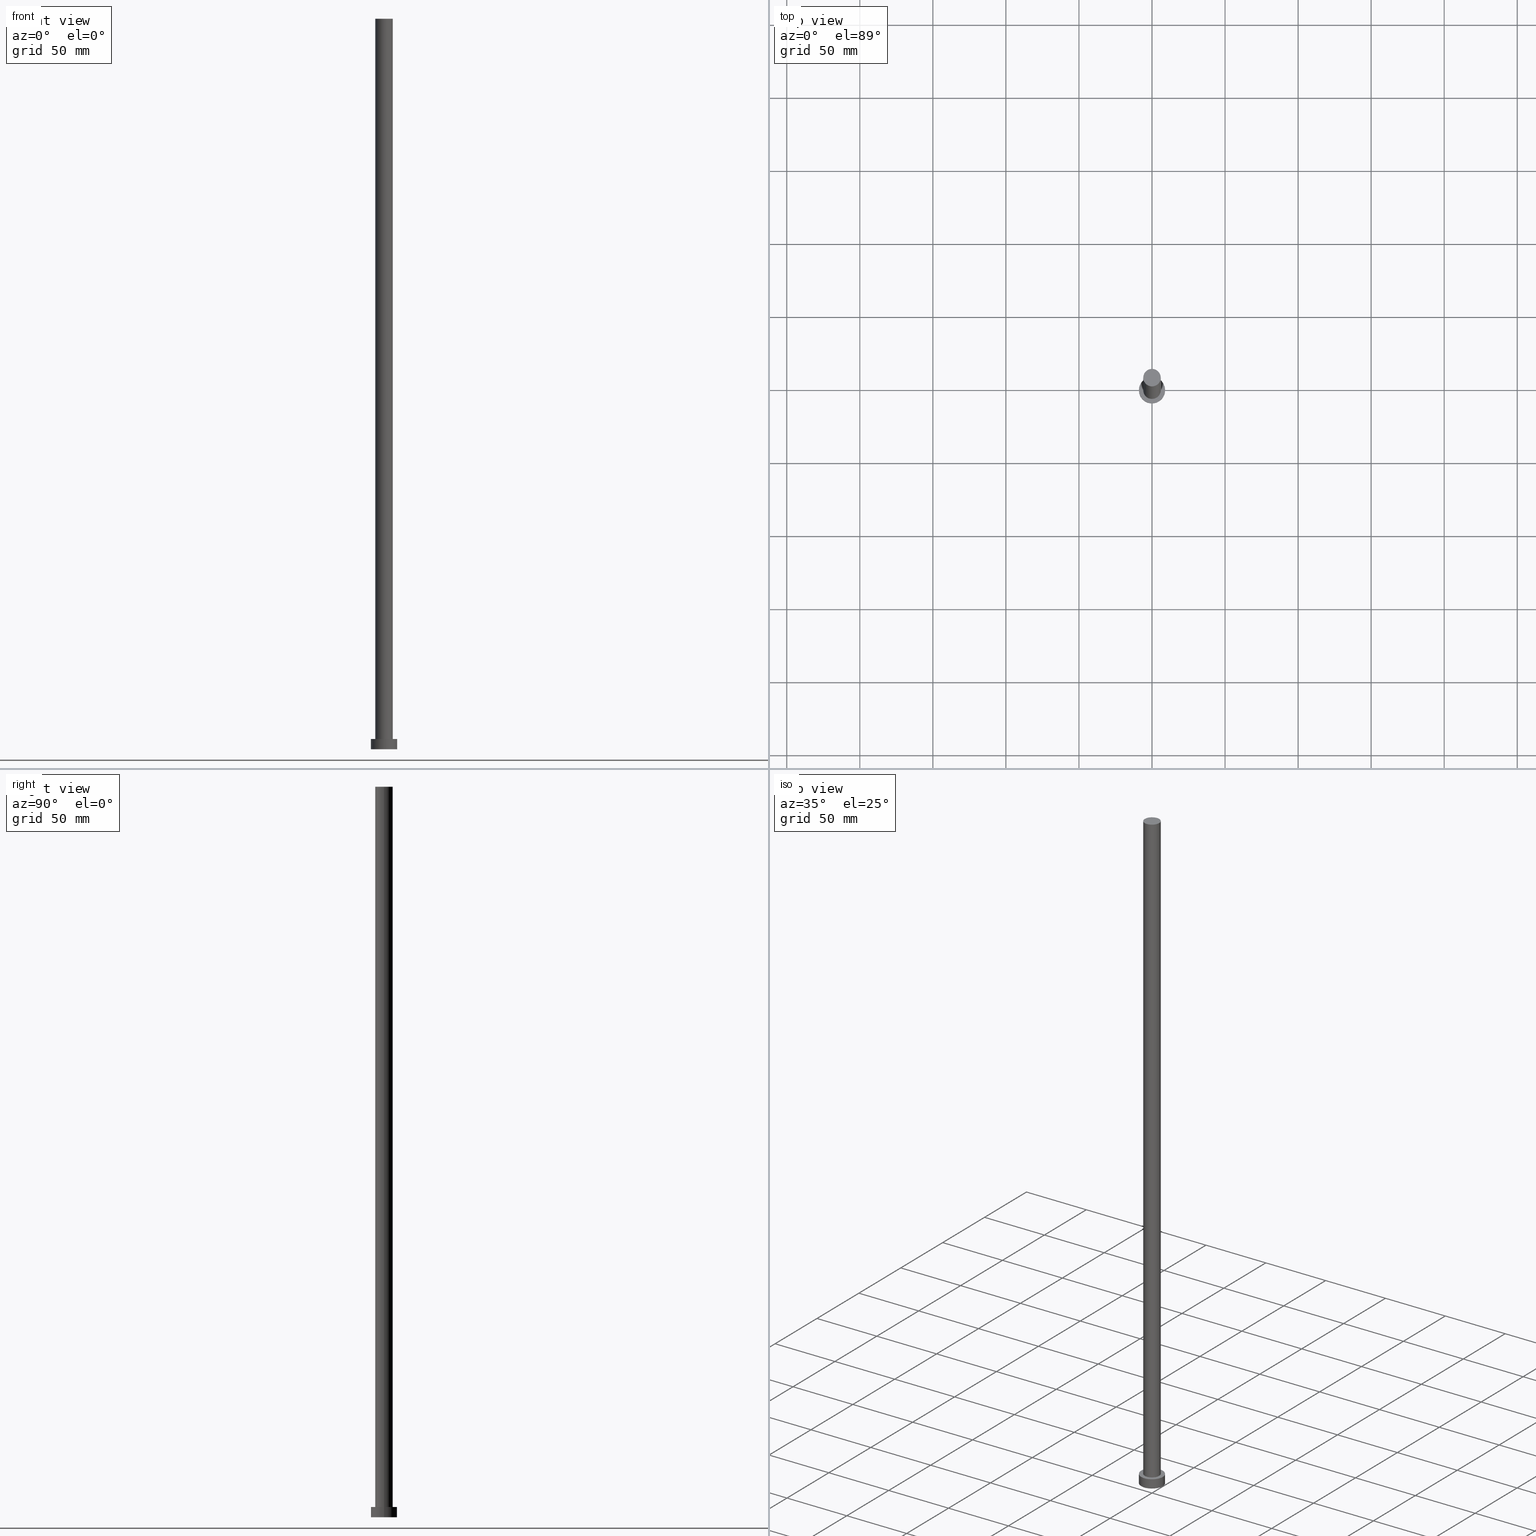
[diagram: canonical four-view strip — front | top / right | iso, engineering-drawing reading convention]
A machine part, canonical four-view strip (front | top / right | iso — engineering-drawing reading convention). The complete STEP part file that produces these views, byte-faithful:
ISO-10303-21;
HEADER;
FILE_DESCRIPTION (( 'STEP AP203' ),
    '1' );
FILE_NAME ('da40.STEP',
    '2023-02-13T08:56:03',
    ( '' ),
    ( '' ),
    'SwSTEP 2.0',
    'SolidWorks 2019',
    '' );
FILE_SCHEMA (( 'CONFIG_CONTROL_DESIGN' ));
ENDSEC;

DATA;
#1 = AXIS2_PLACEMENT_3D ( 'NONE', #202, #233, #64 ) ;
#2 = DIRECTION ( 'NONE',  ( 0.000000000000000000, 0.000000000000000000, 1.000000000000000000 ) ) ;
#3 = CARTESIAN_POINT ( 'NONE',  ( 0.000000000000000000, 0.000000000000000000, 500.0000000000000000 ) ) ;
#4 = DIRECTION ( 'NONE',  ( 1.000000000000000000, 0.000000000000000000, 0.000000000000000000 ) ) ;
#5 = DIRECTION ( 'NONE',  ( -0.000000000000000000, -0.000000000000000000, -1.000000000000000000 ) ) ;
#6 = PLANE ( 'NONE',  #161 ) ;
#7 = AXIS2_PLACEMENT_3D ( 'NONE', #80, #40, #106 ) ;
#8 = DESIGN_CONTEXT ( 'detailed design', #123, 'design' ) ;
#9 = ORIENTED_EDGE ( 'NONE', *, *, #138, .T. ) ;
#10 = DIRECTION ( 'NONE',  ( 0.000000000000000000, 0.000000000000000000, 1.000000000000000000 ) ) ;
#11 = ORIENTED_EDGE ( 'NONE', *, *, #163, .T. ) ;
#12 = CIRCLE ( 'NONE', #157, 6.000000000000000888 ) ;
#13 = EDGE_LOOP ( 'NONE', ( #249, #207, #118, #179 ) ) ;
#14 = ORIENTED_EDGE ( 'NONE', *, *, #19, .T. ) ;
#15 = DATE_AND_TIME ( #50, #85 ) ;
#16 = COORDINATED_UNIVERSAL_TIME_OFFSET ( 1, 0, .AHEAD. ) ;
#17 = COORDINATED_UNIVERSAL_TIME_OFFSET ( 1, 0, .AHEAD. ) ;
#18 = AXIS2_PLACEMENT_3D ( 'NONE', #3, #183, #131 ) ;
#19 = EDGE_CURVE ( 'NONE', #227, #137, #252, .T. ) ;
#20 = FACE_OUTER_BOUND ( 'NONE', #71, .T. ) ;
#21 = CARTESIAN_POINT ( 'NONE',  ( -9.000000000000000000, 0.000000000000000000, 7.000000000000000000 ) ) ;
#22 = DIRECTION ( 'NONE',  ( 0.000000000000000000, 0.000000000000000000, 1.000000000000000000 ) ) ;
#23 = FACE_OUTER_BOUND ( 'NONE', #27, .T. ) ;
#24 = EDGE_LOOP ( 'NONE', ( #9, #171 ) ) ;
#25 = LOCAL_TIME ( 9, 56, 3.000000000000000000, #17 ) ;
#26 = APPROVAL_STATUS ( 'not_yet_approved' ) ;
#27 = EDGE_LOOP ( 'NONE', ( #151, #154, #49, #97 ) ) ;
#28 = CC_DESIGN_PERSON_AND_ORGANIZATION_ASSIGNMENT ( #244, #69, ( #205 ) ) ;
#29 = ORIENTED_EDGE ( 'NONE', *, *, #72, .F. ) ;
#30 = APPROVAL_PERSON_ORGANIZATION ( #208, #37, #188 ) ;
#31 = EDGE_CURVE ( 'NONE', #172, #93, #174, .T. ) ;
#32 = PERSON_AND_ORGANIZATION ( #35, #101 ) ;
#33 = FACE_OUTER_BOUND ( 'NONE', #243, .T. ) ;
#34 = PERSON_AND_ORGANIZATION ( #35, #101 ) ;
#35 = PERSON ( 'NEUR�EN�', 'NEUR�EN�', 'NEUR�EN�', ('NEUR�EN�'), ('NEUR�EN�'), ('NEUR�EN�') ) ;
#36 = DIRECTION ( 'NONE',  ( 0.000000000000000000, 0.000000000000000000, 1.000000000000000000 ) ) ;
#37 = APPROVAL ( #26, 'NEUR�EN�' ) ;
#38 = CARTESIAN_POINT ( 'NONE',  ( 0.000000000000000000, 0.000000000000000000, 500.0000000000000000 ) ) ;
#39 = AXIS2_PLACEMENT_3D ( 'NONE', #53, #36, #193 ) ;
#40 = DIRECTION ( 'NONE',  ( 0.000000000000000000, 0.000000000000000000, 1.000000000000000000 ) ) ;
#41 = DIRECTION ( 'NONE',  ( 0.000000000000000000, 0.000000000000000000, 1.000000000000000000 ) ) ;
#42 = DIRECTION ( 'NONE',  ( 1.000000000000000000, 0.000000000000000000, 0.000000000000000000 ) ) ;
#43 = VECTOR ( 'NONE', #143, 1000.000000000000000 ) ;
#44 = DIRECTION ( 'NONE',  ( 1.000000000000000000, 0.000000000000000000, -0.000000000000000000 ) ) ;
#45 = CC_DESIGN_DATE_AND_TIME_ASSIGNMENT ( #117, #173, ( #122 ) ) ;
#46 = ORIENTED_EDGE ( 'NONE', *, *, #115, .F. ) ;
#47 = ORIENTED_EDGE ( 'NONE', *, *, #196, .F. ) ;
#48 = CIRCLE ( 'NONE', #144, 6.000000000000000888 ) ;
#49 = ORIENTED_EDGE ( 'NONE', *, *, #31, .T. ) ;
#50 = CALENDAR_DATE ( 2023, 13, 2 ) ;
#51 = CIRCLE ( 'NONE', #7, 9.000000000000000000 ) ;
#52 = APPROVAL_DATE_TIME ( #155, #81 ) ;
#53 = CARTESIAN_POINT ( 'NONE',  ( 0.000000000000000000, 0.000000000000000000, 0.000000000000000000 ) ) ;
#54 = CC_DESIGN_PERSON_AND_ORGANIZATION_ASSIGNMENT ( #34, #229, ( #241 ) ) ;
#55 = PERSON_AND_ORGANIZATION_ROLE ( 'design_supplier' ) ;
#56 = DIRECTION ( 'NONE',  ( 0.000000000000000000, 0.000000000000000000, 1.000000000000000000 ) ) ;
#57 = CARTESIAN_POINT ( 'NONE',  ( 0.000000000000000000, 0.000000000000000000, 7.000000000000000000 ) ) ;
#58 = CARTESIAN_POINT ( 'NONE',  ( 6.000000000000000888, 7.347880794884120722E-16, 500.0000000000000000 ) ) ;
#59 = VECTOR ( 'NONE', #185, 1000.000000000000000 ) ;
#60 = EDGE_CURVE ( 'NONE', #210, #172, #126, .T. ) ;
#61 = CARTESIAN_POINT ( 'NONE',  ( 0.000000000000000000, 0.000000000000000000, 0.000000000000000000 ) ) ;
#62 = CARTESIAN_POINT ( 'NONE',  ( 9.000000000000000000, 1.102182119232617714E-15, 0.000000000000000000 ) ) ;
#63 = AXIS2_PLACEMENT_3D ( 'NONE', #159, #128, #127 ) ;
#64 = DIRECTION ( 'NONE',  ( 1.000000000000000000, 0.000000000000000000, -0.000000000000000000 ) ) ;
#65 = VECTOR ( 'NONE', #253, 1000.000000000000000 ) ;
#66 = ADVANCED_FACE ( 'NONE', ( #33 ), #119, .T. ) ;
#67 = LOCAL_TIME ( 9, 56, 3.000000000000000000, #95 ) ;
#68 = DIRECTION ( 'NONE',  ( 0.000000000000000000, 0.000000000000000000, 1.000000000000000000 ) ) ;
#69 = PERSON_AND_ORGANIZATION_ROLE ( 'design_owner' ) ;
#70 = CARTESIAN_POINT ( 'NONE',  ( 0.000000000000000000, 0.000000000000000000, 7.000000000000000000 ) ) ;
#71 = EDGE_LOOP ( 'NONE', ( #113, #247 ) ) ;
#72 = EDGE_CURVE ( 'NONE', #114, #211, #51, .T. ) ;
#73 = CALENDAR_DATE ( 2023, 13, 2 ) ;
#74 = PRODUCT_DEFINITION_SHAPE ( 'NONE', 'NONE',  #122 ) ;
#75 = SECURITY_CLASSIFICATION_LEVEL ( 'unclassified' ) ;
#76 = CC_DESIGN_SECURITY_CLASSIFICATION ( #108, ( #241 ) ) ;
#77 = PERSON_AND_ORGANIZATION_ROLE ( 'classification_officer' ) ;
#78 = ORIENTED_EDGE ( 'NONE', *, *, #245, .F. ) ;
#79 = APPROVAL_STATUS ( 'not_yet_approved' ) ;
#80 = CARTESIAN_POINT ( 'NONE',  ( 0.000000000000000000, 0.000000000000000000, 7.000000000000000000 ) ) ;
#81 = APPROVAL ( #79, 'NEUR�EN�' ) ;
#82 = COORDINATED_UNIVERSAL_TIME_OFFSET ( 1, 0, .AHEAD. ) ;
#83 = APPLICATION_CONTEXT ( 'configuration controlled 3d designs of mechanical parts and assemblies' ) ;
#84 = AXIS2_PLACEMENT_3D ( 'NONE', #220, #160, #218 ) ;
#85 = LOCAL_TIME ( 9, 56, 3.000000000000000000, #120 ) ;
#86 = CYLINDRICAL_SURFACE ( 'NONE', #63, 9.000000000000000000 ) ;
#87 = PLANE ( 'NONE',  #166 ) ;
#88 = CARTESIAN_POINT ( 'NONE',  ( -6.000000000000000888, 0.000000000000000000, 500.0000000000000000 ) ) ;
#89 = CARTESIAN_POINT ( 'NONE',  ( 6.000000000000000888, 7.347880794884120722E-16, 7.000000000000000000 ) ) ;
#90 = ADVANCED_FACE ( 'NONE', ( #221 ), #86, .T. ) ;
#91 = AXIS2_PLACEMENT_3D ( 'NONE', #38, #162, #236 ) ;
#92 = AXIS2_PLACEMENT_3D ( 'NONE', #230, #56, #141 ) ;
#93 = VERTEX_POINT ( 'NONE', #219 ) ;
#94 = ORIENTED_EDGE ( 'NONE', *, *, #196, .T. ) ;
#95 = COORDINATED_UNIVERSAL_TIME_OFFSET ( 1, 0, .AHEAD. ) ;
#96 = EDGE_CURVE ( 'NONE', #210, #209, #184, .T. ) ;
#97 = ORIENTED_EDGE ( 'NONE', *, *, #237, .T. ) ;
#98 = MANIFOLD_SOLID_BREP ( 'P�idat vysunut�m3', #199 ) ;
#99 = CC_DESIGN_DATE_AND_TIME_ASSIGNMENT ( #104, #177, ( #108 ) ) ;
#100 = ADVANCED_BREP_SHAPE_REPRESENTATION ( 'da40', ( #98, #167 ), #191 ) ;
#101 = ORGANIZATION ( 'NEUR�EN�', 'NEUR�EN�', '' ) ;
#102 = APPROVAL_STATUS ( 'not_yet_approved' ) ;
#103 = CARTESIAN_POINT ( 'NONE',  ( 0.000000000000000000, 0.000000000000000000, 7.000000000000000000 ) ) ;
#104 = DATE_AND_TIME ( #156, #25 ) ;
#105 = CARTESIAN_POINT ( 'NONE',  ( 0.000000000000000000, 0.000000000000000000, 0.000000000000000000 ) ) ;
#106 = DIRECTION ( 'NONE',  ( 1.000000000000000000, 0.000000000000000000, 0.000000000000000000 ) ) ;
#107 = FACE_OUTER_BOUND ( 'NONE', #13, .T. ) ;
#108 = SECURITY_CLASSIFICATION ( '', '', #75 ) ;
#109 = FACE_OUTER_BOUND ( 'NONE', #169, .T. ) ;
#110 = ADVANCED_FACE ( 'NONE', ( #107 ), #203, .T. ) ;
#111 = LINE ( 'NONE', #21, #190 ) ;
#112 = ORIENTED_EDGE ( 'NONE', *, *, #115, .T. ) ;
#113 = ORIENTED_EDGE ( 'NONE', *, *, #187, .F. ) ;
#114 = VERTEX_POINT ( 'NONE', #200 ) ;
#115 = EDGE_CURVE ( 'NONE', #211, #137, #111, .T. ) ;
#116 = PERSON_AND_ORGANIZATION ( #35, #101 ) ;
#117 = DATE_AND_TIME ( #215, #232 ) ;
#118 = ORIENTED_EDGE ( 'NONE', *, *, #245, .T. ) ;
#119 = CYLINDRICAL_SURFACE ( 'NONE', #212, 9.000000000000000000 ) ;
#120 = COORDINATED_UNIVERSAL_TIME_OFFSET ( 1, 0, .AHEAD. ) ;
#121 = DIRECTION ( 'NONE',  ( -1.000000000000000000, 0.000000000000000000, 0.000000000000000000 ) ) ;
#122 = PRODUCT_DEFINITION ( 'NEZN�M�', '', #241, #8 ) ;
#123 = APPLICATION_CONTEXT ( 'configuration controlled 3d designs of mechanical parts and assemblies' ) ;
#124 = LINE ( 'NONE', #129, #59 ) ;
#125 = AXIS2_PLACEMENT_3D ( 'NONE', #57, #22, #4 ) ;
#126 = CIRCLE ( 'NONE', #92, 6.000000000000000888 ) ;
#127 = DIRECTION ( 'NONE',  ( -1.000000000000000000, 0.000000000000000000, 0.000000000000000000 ) ) ;
#128 = DIRECTION ( 'NONE',  ( -0.000000000000000000, -0.000000000000000000, -1.000000000000000000 ) ) ;
#129 = CARTESIAN_POINT ( 'NONE',  ( 9.000000000000000000, 1.102182119232617714E-15, 7.000000000000000000 ) ) ;
#130 = ADVANCED_FACE ( 'NONE', ( #239, #109 ), #165, .T. ) ;
#131 = DIRECTION ( 'NONE',  ( 1.000000000000000000, 0.000000000000000000, 0.000000000000000000 ) ) ;
#132 =( NAMED_UNIT ( * ) SI_UNIT ( $, .STERADIAN. ) SOLID_ANGLE_UNIT ( ) );
#133 = DIRECTION ( 'NONE',  ( 1.000000000000000000, 0.000000000000000000, 0.000000000000000000 ) ) ;
#134 = CC_DESIGN_APPROVAL ( #81, ( #108 ) ) ;
#135 = EDGE_LOOP ( 'NONE', ( #231, #78 ) ) ;
#136 =( LENGTH_UNIT ( ) NAMED_UNIT ( * ) SI_UNIT ( .MILLI., .METRE. ) );
#137 = VERTEX_POINT ( 'NONE', #217 ) ;
#138 = EDGE_CURVE ( 'NONE', #172, #210, #149, .T. ) ;
#139 = SHAPE_DEFINITION_REPRESENTATION ( #74, #100 ) ;
#140 = CIRCLE ( 'NONE', #194, 9.000000000000000000 ) ;
#141 = DIRECTION ( 'NONE',  ( 1.000000000000000000, 0.000000000000000000, 0.000000000000000000 ) ) ;
#142 = PERSON_AND_ORGANIZATION_ROLE ( 'creator' ) ;
#143 = DIRECTION ( 'NONE',  ( -0.000000000000000000, -0.000000000000000000, -1.000000000000000000 ) ) ;
#144 = AXIS2_PLACEMENT_3D ( 'NONE', #182, #2, #133 ) ;
#145 = CARTESIAN_POINT ( 'NONE',  ( 0.000000000000000000, 0.000000000000000000, 500.0000000000000000 ) ) ;
#146 = DIRECTION ( 'NONE',  ( 0.000000000000000000, 0.000000000000000000, 1.000000000000000000 ) ) ;
#147 = ADVANCED_FACE ( 'NONE', ( #234 ), #87, .T. ) ;
#148 = DIRECTION ( 'NONE',  ( 0.000000000000000000, 0.000000000000000000, 1.000000000000000000 ) ) ;
#149 = CIRCLE ( 'NONE', #18, 6.000000000000000888 ) ;
#150 = DIRECTION ( 'NONE',  ( 1.000000000000000000, 0.000000000000000000, 0.000000000000000000 ) ) ;
#151 = ORIENTED_EDGE ( 'NONE', *, *, #96, .F. ) ;
#152 = APPLICATION_PROTOCOL_DEFINITION ( 'international standard', 'config_control_design', 1994, #123 ) ;
#153 = DATE_AND_TIME ( #246, #67 ) ;
#154 = ORIENTED_EDGE ( 'NONE', *, *, #138, .F. ) ;
#155 = DATE_AND_TIME ( #73, #176 ) ;
#156 = CALENDAR_DATE ( 2023, 13, 2 ) ;
#157 = AXIS2_PLACEMENT_3D ( 'NONE', #70, #10, #170 ) ;
#158 = PRODUCT_RELATED_PRODUCT_CATEGORY ( 'detail', '', ( #205 ) ) ;
#159 = CARTESIAN_POINT ( 'NONE',  ( 0.000000000000000000, 0.000000000000000000, 7.000000000000000000 ) ) ;
#160 = DIRECTION ( 'NONE',  ( -0.000000000000000000, -0.000000000000000000, -1.000000000000000000 ) ) ;
#161 = AXIS2_PLACEMENT_3D ( 'NONE', #105, #148, #44 ) ;
#162 = DIRECTION ( 'NONE',  ( -0.000000000000000000, -0.000000000000000000, -1.000000000000000000 ) ) ;
#163 = EDGE_CURVE ( 'NONE', #211, #114, #240, .T. ) ;
#164 = CARTESIAN_POINT ( 'NONE',  ( 6.000000000000000888, 7.347880794884120722E-16, 500.0000000000000000 ) ) ;
#165 = PLANE ( 'NONE',  #1 ) ;
#166 = AXIS2_PLACEMENT_3D ( 'NONE', #145, #41, #198 ) ;
#167 = AXIS2_PLACEMENT_3D ( 'NONE', #242, #68, #150 ) ;
#168 = ORIENTED_EDGE ( 'NONE', *, *, #187, .T. ) ;
#169 = EDGE_LOOP ( 'NONE', ( #11, #189 ) ) ;
#170 = DIRECTION ( 'NONE',  ( 1.000000000000000000, 0.000000000000000000, 0.000000000000000000 ) ) ;
#171 = ORIENTED_EDGE ( 'NONE', *, *, #60, .T. ) ;
#172 = VERTEX_POINT ( 'NONE', #88 ) ;
#173 = DATE_TIME_ROLE ( 'creation_date' ) ;
#174 = LINE ( 'NONE', #255, #65 ) ;
#175 = ADVANCED_FACE ( 'NONE', ( #23 ), #186, .T. ) ;
#176 = LOCAL_TIME ( 9, 56, 3.000000000000000000, #82 ) ;
#177 = DATE_TIME_ROLE ( 'classification_date' ) ;
#178 = DIRECTION ( 'NONE',  ( -0.000000000000000000, -0.000000000000000000, -1.000000000000000000 ) ) ;
#179 = ORIENTED_EDGE ( 'NONE', *, *, #31, .F. ) ;
#180 = PERSON_AND_ORGANIZATION ( #35, #101 ) ;
#181 = APPROVAL_PERSON_ORGANIZATION ( #32, #250, #251 ) ;
#182 = CARTESIAN_POINT ( 'NONE',  ( 0.000000000000000000, 0.000000000000000000, 7.000000000000000000 ) ) ;
#183 = DIRECTION ( 'NONE',  ( 0.000000000000000000, 0.000000000000000000, 1.000000000000000000 ) ) ;
#184 = LINE ( 'NONE', #58, #43 ) ;
#185 = DIRECTION ( 'NONE',  ( -0.000000000000000000, -0.000000000000000000, -1.000000000000000000 ) ) ;
#186 = CYLINDRICAL_SURFACE ( 'NONE', #91, 6.000000000000000888 ) ;
#187 = EDGE_CURVE ( 'NONE', #137, #227, #140, .T. ) ;
#188 = APPROVAL_ROLE ( '' ) ;
#189 = ORIENTED_EDGE ( 'NONE', *, *, #72, .T. ) ;
#190 = VECTOR ( 'NONE', #5, 1000.000000000000000 ) ;
#191 =( GEOMETRIC_REPRESENTATION_CONTEXT ( 3 ) GLOBAL_UNCERTAINTY_ASSIGNED_CONTEXT ( ( #223 ) ) GLOBAL_UNIT_ASSIGNED_CONTEXT ( ( #136, #224, #132 ) ) REPRESENTATION_CONTEXT ( 'NONE', 'WORKASPACE' ) );
#192 = ORIENTED_EDGE ( 'NONE', *, *, #163, .F. ) ;
#193 = DIRECTION ( 'NONE',  ( 1.000000000000000000, 0.000000000000000000, 0.000000000000000000 ) ) ;
#194 = AXIS2_PLACEMENT_3D ( 'NONE', #61, #146, #42 ) ;
#195 = APPROVAL_DATE_TIME ( #153, #37 ) ;
#196 = EDGE_CURVE ( 'NONE', #114, #227, #124, .T. ) ;
#197 = APPROVAL_DATE_TIME ( #15, #250 ) ;
#198 = DIRECTION ( 'NONE',  ( 1.000000000000000000, 0.000000000000000000, -0.000000000000000000 ) ) ;
#199 = CLOSED_SHELL ( 'NONE', ( #110, #66, #90, #130, #228, #175, #147 ) ) ;
#200 = CARTESIAN_POINT ( 'NONE',  ( 9.000000000000000000, 1.102182119232617714E-15, 7.000000000000000000 ) ) ;
#201 = CC_DESIGN_PERSON_AND_ORGANIZATION_ASSIGNMENT ( #214, #55, ( #241 ) ) ;
#202 = CARTESIAN_POINT ( 'NONE',  ( 0.000000000000000000, 0.000000000000000000, 7.000000000000000000 ) ) ;
#203 = CYLINDRICAL_SURFACE ( 'NONE', #84, 6.000000000000000888 ) ;
#204 = CC_DESIGN_PERSON_AND_ORGANIZATION_ASSIGNMENT ( #116, #77, ( #108 ) ) ;
#205 = PRODUCT ( 'da40', 'da40', '', ( #206 ) ) ;
#206 = MECHANICAL_CONTEXT ( 'NONE', #83, 'mechanical' ) ;
#207 = ORIENTED_EDGE ( 'NONE', *, *, #96, .T. ) ;
#208 = PERSON_AND_ORGANIZATION ( #35, #101 ) ;
#209 = VERTEX_POINT ( 'NONE', #89 ) ;
#210 = VERTEX_POINT ( 'NONE', #164 ) ;
#211 = VERTEX_POINT ( 'NONE', #238 ) ;
#212 = AXIS2_PLACEMENT_3D ( 'NONE', #103, #178, #121 ) ;
#213 = CC_DESIGN_APPROVAL ( #37, ( #122 ) ) ;
#214 = PERSON_AND_ORGANIZATION ( #35, #101 ) ;
#215 = CALENDAR_DATE ( 2023, 13, 2 ) ;
#216 = APPROVAL_ROLE ( '' ) ;
#217 = CARTESIAN_POINT ( 'NONE',  ( -9.000000000000000000, 0.000000000000000000, 0.000000000000000000 ) ) ;
#218 = DIRECTION ( 'NONE',  ( -1.000000000000000000, 0.000000000000000000, 0.000000000000000000 ) ) ;
#219 = CARTESIAN_POINT ( 'NONE',  ( -6.000000000000000888, 0.000000000000000000, 7.000000000000000000 ) ) ;
#220 = CARTESIAN_POINT ( 'NONE',  ( 0.000000000000000000, 0.000000000000000000, 500.0000000000000000 ) ) ;
#221 = FACE_OUTER_BOUND ( 'NONE', #225, .T. ) ;
#222 = CC_DESIGN_PERSON_AND_ORGANIZATION_ASSIGNMENT ( #254, #142, ( #122 ) ) ;
#223 = UNCERTAINTY_MEASURE_WITH_UNIT (LENGTH_MEASURE( 1.000000000000000082E-05 ), #136, 'distance_accuracy_value', 'NONE');
#224 =( NAMED_UNIT ( * ) PLANE_ANGLE_UNIT ( ) SI_UNIT ( $, .RADIAN. ) );
#225 = EDGE_LOOP ( 'NONE', ( #47, #192, #112, #168 ) ) ;
#226 = APPLICATION_PROTOCOL_DEFINITION ( 'international standard', 'config_control_design', 1994, #83 ) ;
#227 = VERTEX_POINT ( 'NONE', #62 ) ;
#228 = ADVANCED_FACE ( 'NONE', ( #20 ), #6, .F. ) ;
#229 = PERSON_AND_ORGANIZATION_ROLE ( 'creator' ) ;
#230 = CARTESIAN_POINT ( 'NONE',  ( 0.000000000000000000, 0.000000000000000000, 500.0000000000000000 ) ) ;
#231 = ORIENTED_EDGE ( 'NONE', *, *, #237, .F. ) ;
#232 = LOCAL_TIME ( 9, 56, 3.000000000000000000, #16 ) ;
#233 = DIRECTION ( 'NONE',  ( 0.000000000000000000, 0.000000000000000000, 1.000000000000000000 ) ) ;
#234 = FACE_OUTER_BOUND ( 'NONE', #24, .T. ) ;
#235 = APPROVAL_PERSON_ORGANIZATION ( #180, #81, #216 ) ;
#236 = DIRECTION ( 'NONE',  ( -1.000000000000000000, 0.000000000000000000, 0.000000000000000000 ) ) ;
#237 = EDGE_CURVE ( 'NONE', #93, #209, #48, .T. ) ;
#238 = CARTESIAN_POINT ( 'NONE',  ( -9.000000000000000000, 0.000000000000000000, 7.000000000000000000 ) ) ;
#239 = FACE_BOUND ( 'NONE', #135, .T. ) ;
#240 = CIRCLE ( 'NONE', #125, 9.000000000000000000 ) ;
#241 = PRODUCT_DEFINITION_FORMATION_WITH_SPECIFIED_SOURCE ( 'LIBOVOLN�', '', #205, .NOT_KNOWN. ) ;
#242 = CARTESIAN_POINT ( 'NONE',  ( 0.000000000000000000, 0.000000000000000000, 0.000000000000000000 ) ) ;
#243 = EDGE_LOOP ( 'NONE', ( #29, #94, #14, #46 ) ) ;
#244 = PERSON_AND_ORGANIZATION ( #35, #101 ) ;
#245 = EDGE_CURVE ( 'NONE', #209, #93, #12, .T. ) ;
#246 = CALENDAR_DATE ( 2023, 13, 2 ) ;
#247 = ORIENTED_EDGE ( 'NONE', *, *, #19, .F. ) ;
#248 = CC_DESIGN_APPROVAL ( #250, ( #241 ) ) ;
#249 = ORIENTED_EDGE ( 'NONE', *, *, #60, .F. ) ;
#250 = APPROVAL ( #102, 'NEUR�EN�' ) ;
#251 = APPROVAL_ROLE ( '' ) ;
#252 = CIRCLE ( 'NONE', #39, 9.000000000000000000 ) ;
#253 = DIRECTION ( 'NONE',  ( -0.000000000000000000, -0.000000000000000000, -1.000000000000000000 ) ) ;
#254 = PERSON_AND_ORGANIZATION ( #35, #101 ) ;
#255 = CARTESIAN_POINT ( 'NONE',  ( -6.000000000000000888, 0.000000000000000000, 500.0000000000000000 ) ) ;
ENDSEC;
END-ISO-10303-21;
